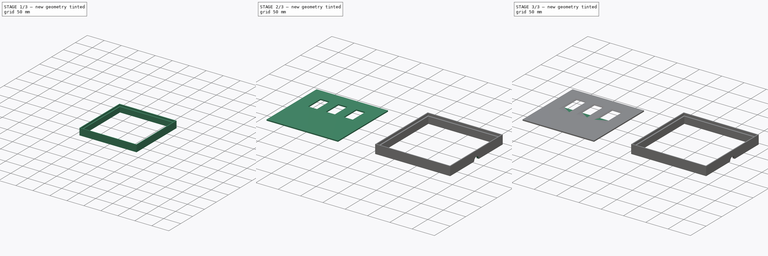
[diagram: build sequence overview — one tinted view per stage of 3, left to right]
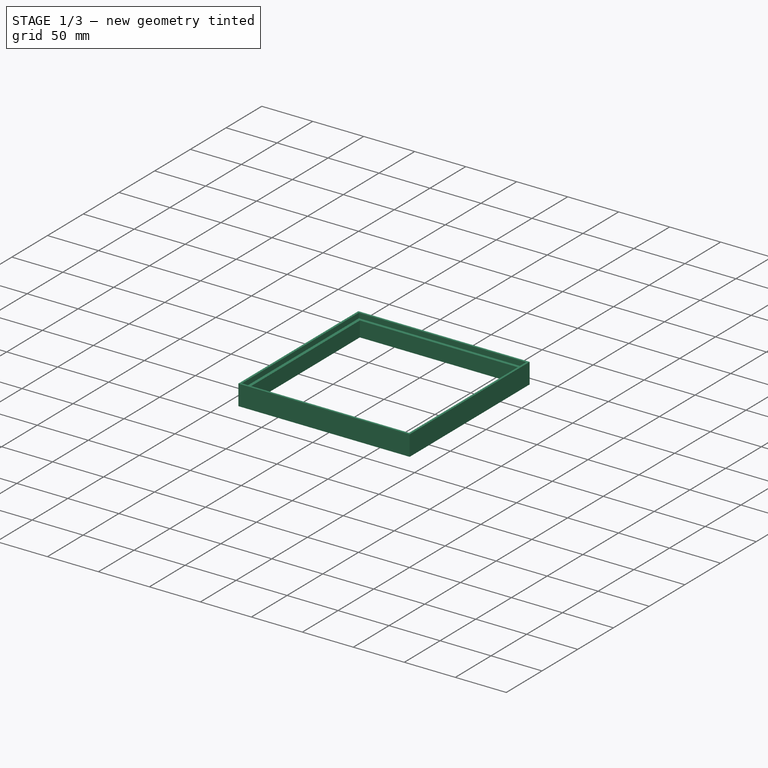
[diagram: stage 1 of 3 — iso view after this stage's code; geometry added in this stage tinted green]
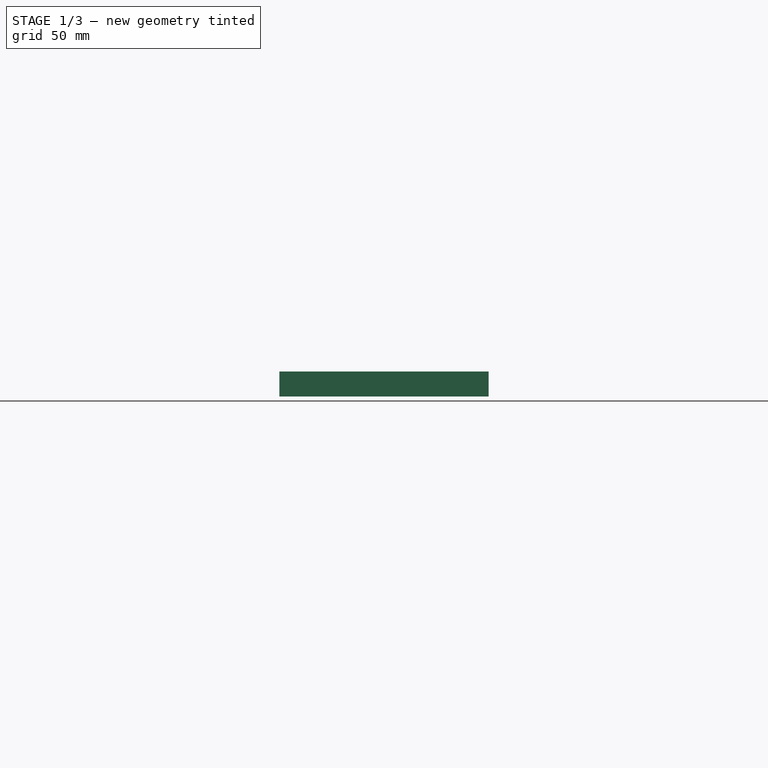
[diagram: stage 1 of 3 — front view after this stage's code; geometry added in this stage tinted green]
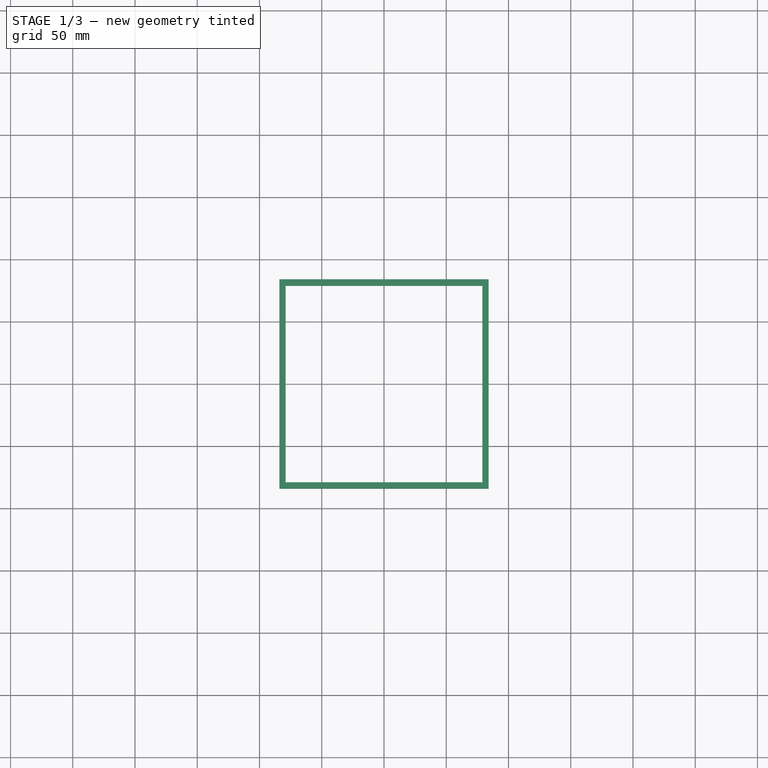
[diagram: stage 1 of 3 — top view after this stage's code; geometry added in this stage tinted green]
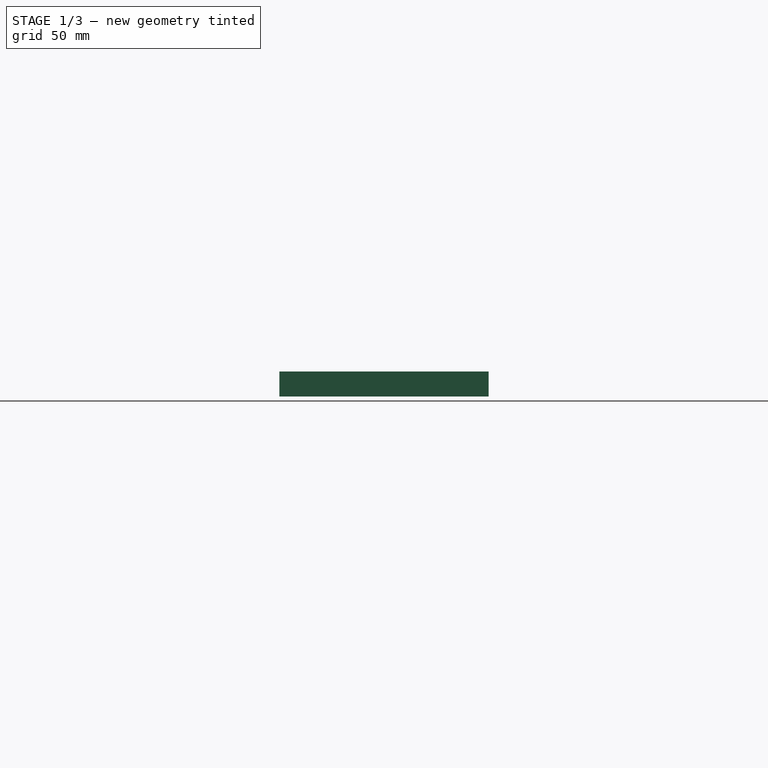
[diagram: stage 1 of 3 — right view after this stage's code; geometry added in this stage tinted green]
FCSTD DOCUMENT  (FreeCAD 1.0R39285 (Git))
Label: LEDMatrixBox
License: All rights reserved
LicenseURL: https://en.wikipedia.org/wiki/All_rights_reserved
objects: Sketcher::SketchObject×4, PartDesign::Pad×2, PartDesign::Chamfer×2, PartDesign::Body×2, PartDesign::Pocket×2
note: 28 computed .brp shape members not serialized (recipe doc carries the construction recipe); baked Part::Feature solids carry a one-line shape summary decoded from their .brp

FEATURE [PartDesign::Body] Body  label="BackPlate"
  AllowCompound = false
  Group = -> [Sketch,Pad,Chamfer,Chamfer001]
  Origin = -> Origin
  Tip = -> Chamfer001
FEATURE [Sketcher::SketchObject] Sketch001
  ArcFitTolerance = 1e-06
  AttachmentSupport = -> [XY_Plane001]
  FullyConstrained = true
  MakeInternals = false
  MapMode = 5
  sketch-geometry (10):
    g0: LineSegment StartX=166 StartY=84 StartZ=0 EndX=166 EndY=-84 EndZ=0
    g1: LineSegment StartX=166 StartY=-84 StartZ=0 EndX=334 EndY=-84 EndZ=0
    g2: LineSegment StartX=334 StartY=-84 StartZ=0 EndX=334 EndY=84 EndZ=0
    g3: LineSegment StartX=334 StartY=84 StartZ=0 EndX=166 EndY=84 EndZ=0
    g4: GeomPoint [constr] X=250 Y=0 Z=0
    g5: LineSegment StartX=171 StartY=79 StartZ=0 EndX=171 EndY=-79 EndZ=0
    g6: LineSegment StartX=171 StartY=-79 StartZ=0 EndX=329 EndY=-79 EndZ=0
    g7: LineSegment StartX=329 StartY=-79 StartZ=0 EndX=329 EndY=79 EndZ=0
    g8: LineSegment StartX=329 StartY=79 StartZ=0 EndX=171 EndY=79 EndZ=0
    g9: GeomPoint [constr] X=250 Y=0 Z=0
  constraints (25):
    c: Coincident(g0,g1)
    c: Coincident(g1,g2)
    c: Coincident(g2,g3)
    c: Coincident(g3,g0)
    c: Vertical(g0)
    c: Vertical(g2)
    c: Horizontal(g1)
    c: Horizontal(g3)
    c: Symmetric(g2,g0,g4)
    c: PointOnObject(g4,g-1)
    c: Coincident(g5,g6)
    c: Coincident(g6,g7)
    c: Coincident(g7,g8)
    c: Coincident(g8,g5)
    c: Vertical(g5)
    c: Vertical(g7)
    c: Horizontal(g6)
    c: Horizontal(g8)
    c: Symmetric(g7,g5,g9)
    c: Coincident(g9,g4)
    c: DistanceX(g8,g8) = 158
    c: DistanceY(g7,g7) = 158
    c: Distance(g3,g8) = 5
    c: Distance(g2,g7) = 5
    c: Distance(g9,g-2) = 250
FEATURE [PartDesign::Pad] Pad001
  Direction = (0,0,1)
  Length = 20
  Length2 = 10
  Profile = -> Sketch001
  ReferenceAxis = -> Sketch001 [N_Axis]
  Refine = true
  Suppressed = false
  Type = 0
FEATURE [Sketcher::SketchObject] Sketch002
  ArcFitTolerance = 1e-06
  AttachmentSupport = -> [Pad001]
  ExternalGeometry = -> [Pad001]
  FullyConstrained = true
  MakeInternals = false
  MapMode = 5
  Placement = pos=(0,0,20) rot=(0,0,1;0rad)
  sketch-geometry (4):
    g0: LineSegment StartX=168 StartY=82 StartZ=0 EndX=168 EndY=-82 EndZ=0
    g1: LineSegment StartX=168 StartY=-82 StartZ=0 EndX=332 EndY=-82 EndZ=0
    g2: LineSegment StartX=332 StartY=-82 StartZ=0 EndX=332 EndY=82 EndZ=0
    g3: LineSegment StartX=332 StartY=82 StartZ=0 EndX=168 EndY=82 EndZ=0
  constraints (12):
    c: Coincident(g0,g1)
    c: Coincident(g1,g2)
    c: Coincident(g2,g3)
    c: Coincident(g3,g0)
    c: Vertical(g0)
    c: Vertical(g2)
    c: Horizontal(g1)
    c: Horizontal(g3)
    c: Distance(g2,g-5) = 3
    c: Distance(g1,g-6) = 3
    c: Distance(g0,g-3) = 3
    c: Distance(g-4,g3) = 3
FEATURE [PartDesign::Pocket] Pocket
  BaseFeature = -> Pad001
  Direction = (0,0,-1)
  Length = 5
  Length2 = 5
  Profile = -> Sketch002
  ReferenceAxis = -> Sketch002 [N_Axis]
  Refine = true
  Suppressed = false
  Type = 0
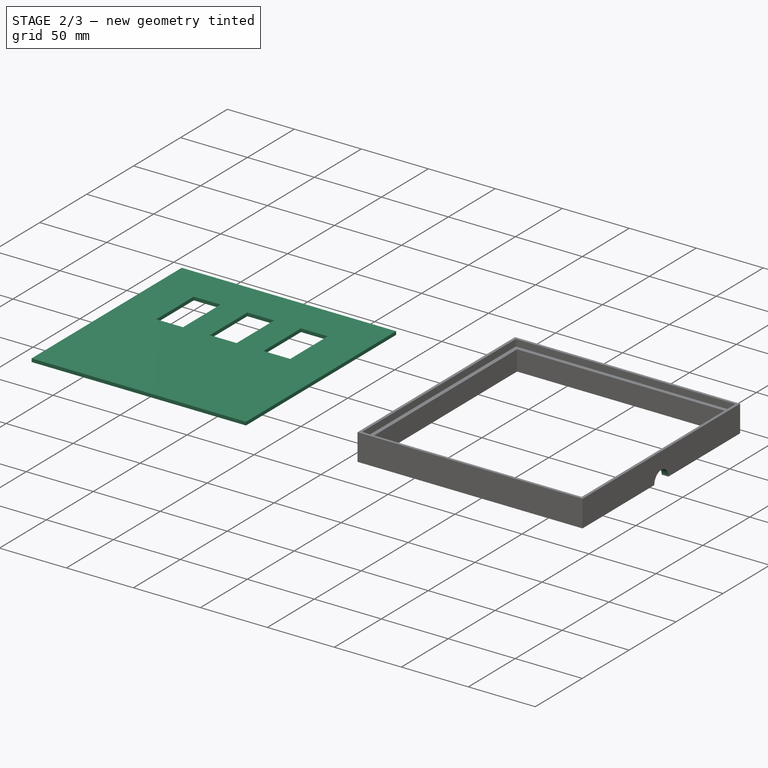
[diagram: stage 2 of 3 — iso view after this stage's code; geometry added in this stage tinted green]
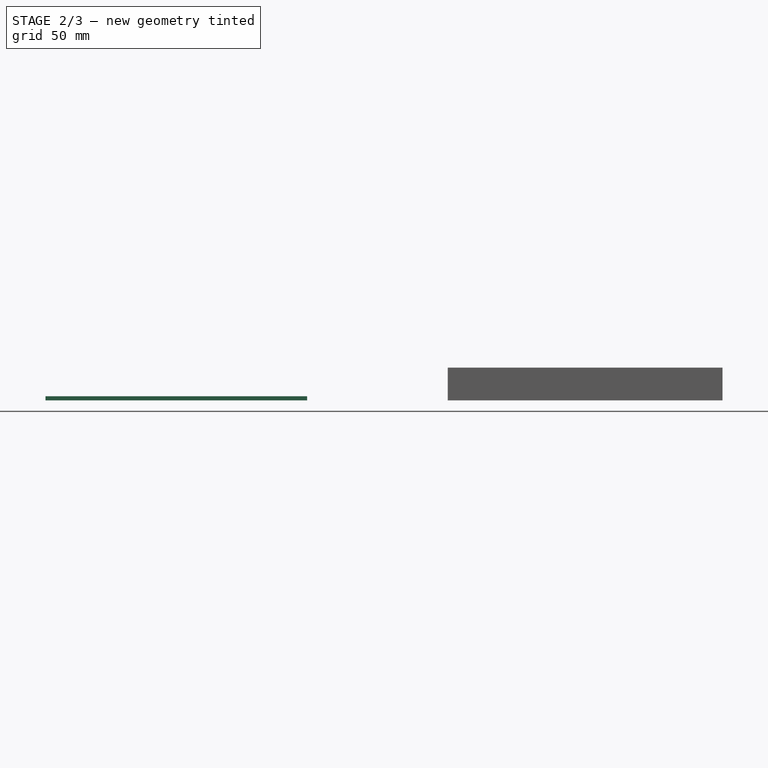
[diagram: stage 2 of 3 — front view after this stage's code; geometry added in this stage tinted green]
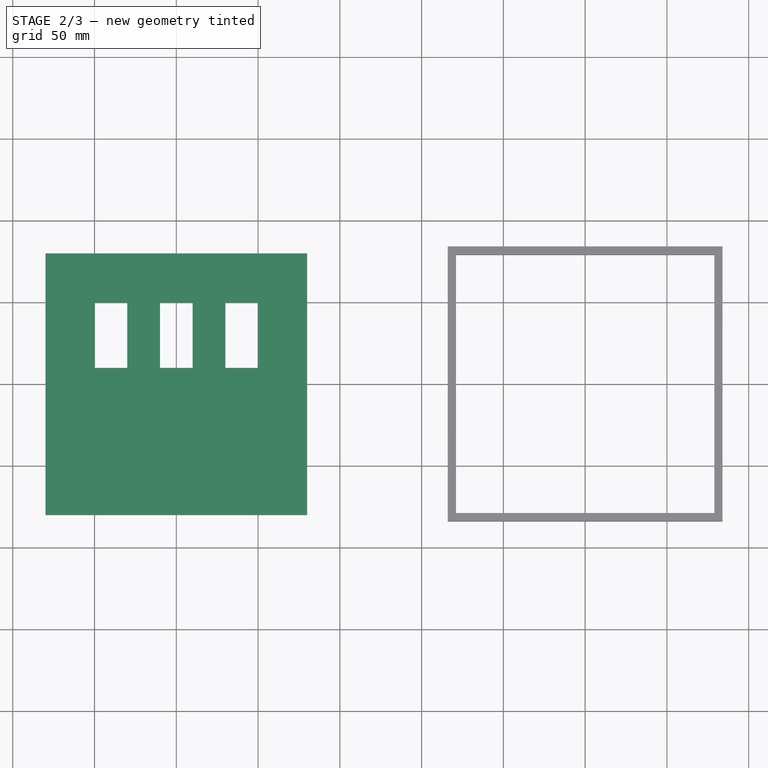
[diagram: stage 2 of 3 — top view after this stage's code; geometry added in this stage tinted green]
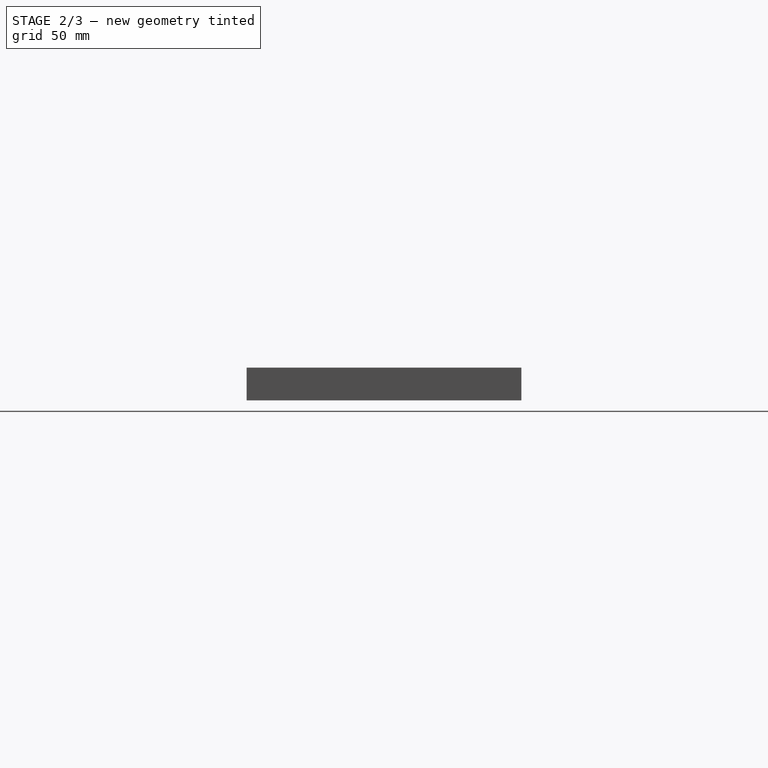
[diagram: stage 2 of 3 — right view after this stage's code; geometry added in this stage tinted green]
FEATURE [Sketcher::SketchObject] Sketch
  ArcFitTolerance = 1e-06
  AttachmentSupport = -> [XY_Plane]
  FullyConstrained = true
  MakeInternals = false
  MapMode = 5
  sketch-geometry (23):
    g0: LineSegment StartX=-80 StartY=80 StartZ=0 EndX=-80 EndY=-80 EndZ=0
    g1: LineSegment StartX=-80 StartY=-80 StartZ=0 EndX=80 EndY=-80 EndZ=0
    g2: LineSegment StartX=80 StartY=-80 StartZ=0 EndX=80 EndY=80 EndZ=0
    g3: LineSegment StartX=80 StartY=80 StartZ=0 EndX=-80 EndY=80 EndZ=0
    g4: GeomPoint [constr] X=0 Y=0 Z=0
    g5: LineSegment [constr] StartX=-80 StartY=50 StartZ=0 EndX=80 EndY=50 EndZ=0
    g6: LineSegment [constr] StartX=-40 StartY=80 StartZ=0 EndX=-40 EndY=-80 EndZ=0
    g7: LineSegment [constr] StartX=40 StartY=80 StartZ=0 EndX=40 EndY=-80 EndZ=0
    g8: LineSegment StartX=-50 StartY=50 StartZ=0 EndX=-50 EndY=10 EndZ=0
    g9: LineSegment StartX=-50 StartY=10 StartZ=0 EndX=-30 EndY=10 EndZ=0
    g10: LineSegment StartX=-30 StartY=10 StartZ=0 EndX=-30 EndY=50 EndZ=0
    g11: LineSegment StartX=-30 StartY=50 StartZ=0 EndX=-50 EndY=50 EndZ=0
    g12: GeomPoint [constr] X=-40 Y=30 Z=0
    g13: LineSegment StartX=-10 StartY=50 StartZ=0 EndX=-10 EndY=10 EndZ=0
    g14: LineSegment StartX=-10 StartY=10 StartZ=0 EndX=10 EndY=10 EndZ=0
    g15: LineSegment StartX=10 StartY=10 StartZ=0 EndX=10 EndY=50 EndZ=0
    g16: LineSegment StartX=10 StartY=50 StartZ=0 EndX=-10 EndY=50 EndZ=0
    g17: GeomPoint [constr] X=0 Y=30 Z=0
    g18: LineSegment StartX=30 StartY=50 StartZ=0 EndX=30 EndY=10 EndZ=0
    g19: LineSegment StartX=30 StartY=10 StartZ=0 EndX=50 EndY=10 EndZ=0
    g20: LineSegment StartX=50 StartY=10 StartZ=0 EndX=50 EndY=50 EndZ=0
    g21: LineSegment StartX=50 StartY=50 StartZ=0 EndX=30 EndY=50 EndZ=0
    g22: GeomPoint [constr] X=40 Y=30 Z=0
  constraints (63):
    c: Coincident(g0,g1)
    c: Coincident(g1,g2)
    c: Coincident(g2,g3)
    c: Coincident(g3,g0)
    c: Vertical(g0)
    c: Vertical(g2)
    c: Horizontal(g1)
    c: Horizontal(g3)
    c: Symmetric(g2,g0,g4)
    c: Coincident(g4,g-1)
    c: DistanceX(g3,g3) = 160
    c: DistanceY(g0,g0) = 160
    c: Horizontal(g5)
    c: Vertical(g6)
    c: Vertical(g7)
    c: PointOnObject(g5,g0)
    c: PointOnObject(g6,g3)
    c: PointOnObject(g6,g1)
    c: PointOnObject(g7,g3)
    c: PointOnObject(g5,g2)
    c: PointOnObject(g7,g1)
    c: Distance(g6,g0) = 40
    c: Distance(g7,g2) = 40
    c: Distance(g5,g3) = 30
    c: Coincident(g8,g9)
    c: Coincident(g9,g10)
    c: Coincident(g10,g11)
    c: Coincident(g11,g8)
    c: Vertical(g8)
    c: Vertical(g10)
    c: Horizontal(g9)
    c: Horizontal(g11)
    c: Symmetric(g10,g8,g12)
    c: PointOnObject(g12,g6)
    c: Coincident(g13,g14)
    c: Coincident(g14,g15)
    c: Coincident(g15,g16)
    c: Coincident(g16,g13)
    c: Vertical(g13)
    c: Vertical(g15)
    c: Horizontal(g14)
    c: Horizontal(g16)
    c: Symmetric(g15,g13,g17)
    c: PointOnObject(g17,g-2)
    c: Coincident(g18,g19)
    c: Coincident(g19,g20)
    c: Coincident(g20,g21)
    c: Coincident(g21,g18)
    c: Vertical(g18)
    c: Vertical(g20)
    c: Horizontal(g19)
    c: Horizontal(g21)
    c: Symmetric(g20,g18,g22)
    c: PointOnObject(g22,g7)
    c: PointOnObject(g8,g5)
    c: PointOnObject(g13,g5)
    c: PointOnObject(g18,g5)
    c: Distance(g11,g11) = 20
    c: Distance(g16,g16) = 20
    c: Distance(g21,g21) = 20
    c: DistanceY(g8,g8) = 40
    c: DistanceY(g13,g13) = 40
    c: DistanceY(g18,g18) = 40
FEATURE [PartDesign::Pad] Pad
  Direction = (0,0,1)
  Length = 2.5
  Length2 = 10
  Profile = -> Sketch
  ReferenceAxis = -> Sketch [N_Axis]
  Refine = true
  Suppressed = false
  Type = 0
FEATURE [Sketcher::SketchObject] Sketch003
  ArcFitTolerance = 1e-06
  AttachmentSupport = -> [Pocket]
  FullyConstrained = true
  MakeInternals = false
  MapMode = 5
  Placement = pos=(334,0,0) rot=(0.57735,0.57735,0.57735;2.0944rad)
  sketch-geometry (1):
    g0: Circle CenterX=0 CenterY=0 CenterZ=0 NormalX=0 NormalY=0 NormalZ=1 AngleXU=0 Radius=7.5
  constraints (2):
    c: Coincident(g0,g-1)
    c: Diameter(g0) = 15
FEATURE [PartDesign::Pocket] Pocket001
  BaseFeature = -> Pocket
  Direction = (-1,0,0)
  Length = 15
  Length2 = 5
  Profile = -> Sketch003
  ReferenceAxis = -> Sketch003 [N_Axis]
  Refine = true
  Suppressed = false
  Type = 0
FEATURE [PartDesign::Body] Body001  label="Frame"
  AllowCompound = false
  Group = -> [Sketch001,Pad001,Sketch002,Pocket,Sketch003,Pocket001]
  Origin = -> Origin001
  Tip = -> Pocket001
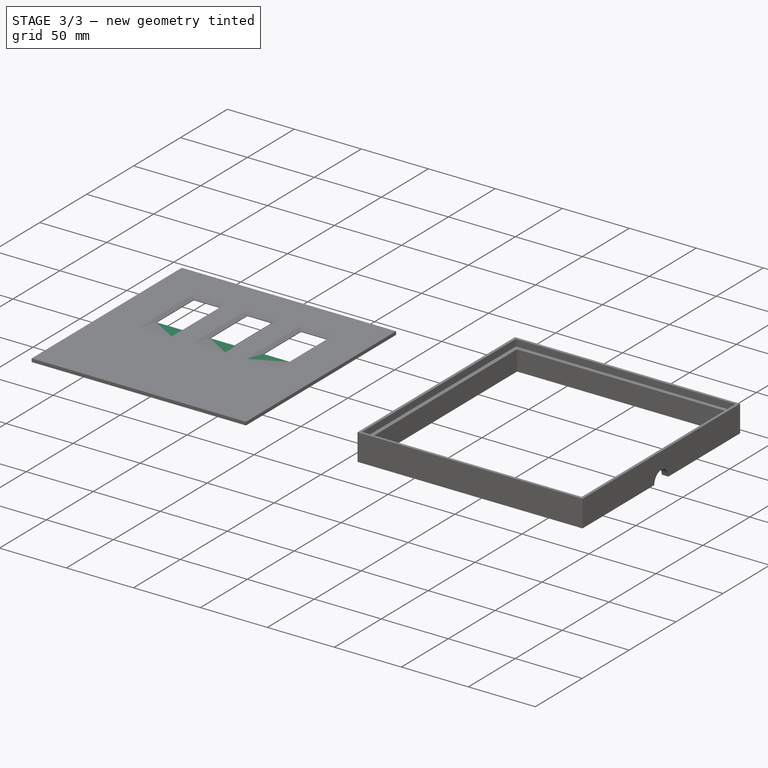
[diagram: stage 3 of 3 — iso view after this stage's code; geometry added in this stage tinted green]
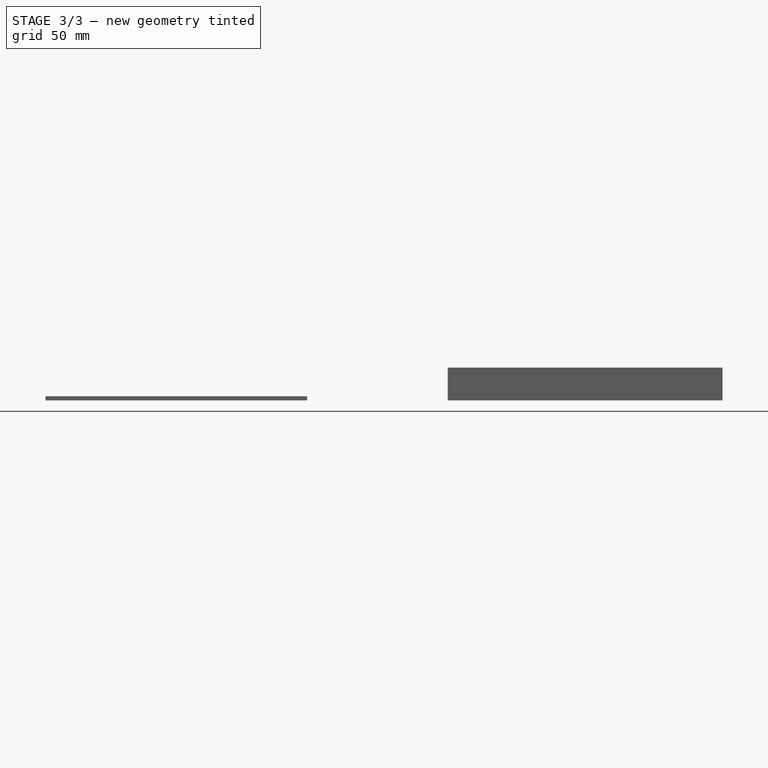
[diagram: stage 3 of 3 — front view after this stage's code; geometry added in this stage tinted green]
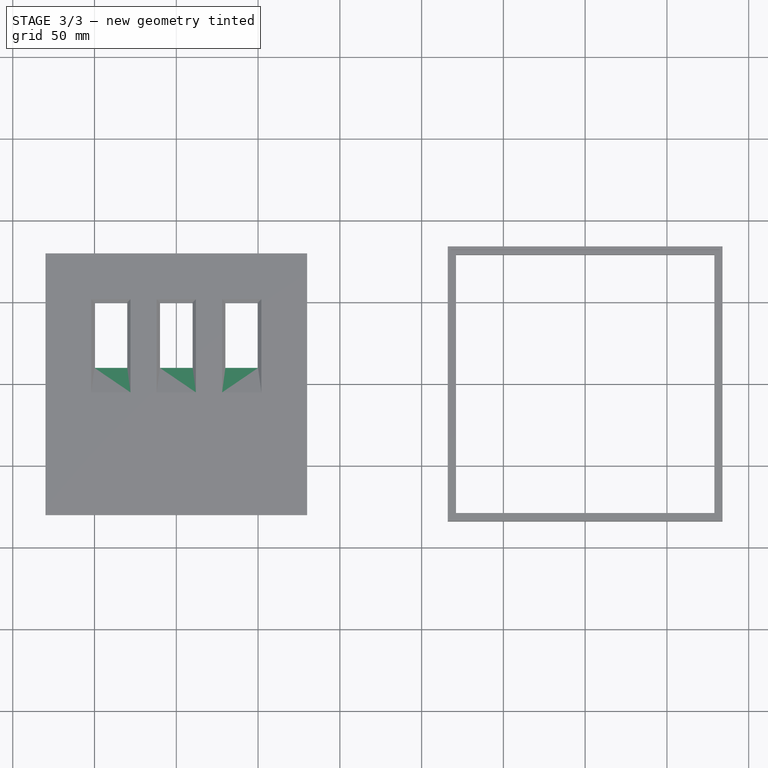
[diagram: stage 3 of 3 — top view after this stage's code; geometry added in this stage tinted green]
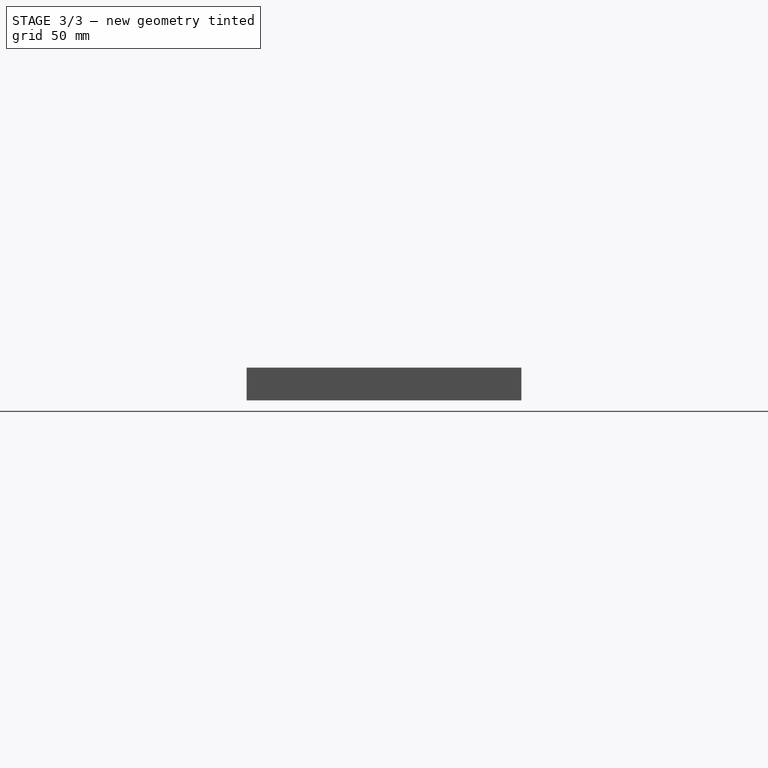
[diagram: stage 3 of 3 — right view after this stage's code; geometry added in this stage tinted green]
FEATURE [PartDesign::Chamfer] Chamfer
  Angle = 45
  Base = -> Pad [Edge31,Edge43,Edge19]
  BaseFeature = -> Pad
  ChamferType = 1
  FlipDirection = false
  Refine = true
  Size = 2
  Size2 = 15
  SupportTransform = false
  Suppressed = false
  UseAllEdges = false
FEATURE [PartDesign::Chamfer] Chamfer001
  Angle = 45
  Base = -> Chamfer [Edge4,Edge6,Edge42,Edge44,Edge43,Edge36,Edge37,Edge39,Edge41,Edge40,Edge26,Edge27,Edge29,Edge31,Edge30]
  BaseFeature = -> Chamfer
  ChamferType = 0
  FlipDirection = false
  Refine = true
  Size = 2
  Size2 = 1
  SupportTransform = false
  Suppressed = false
  UseAllEdges = false
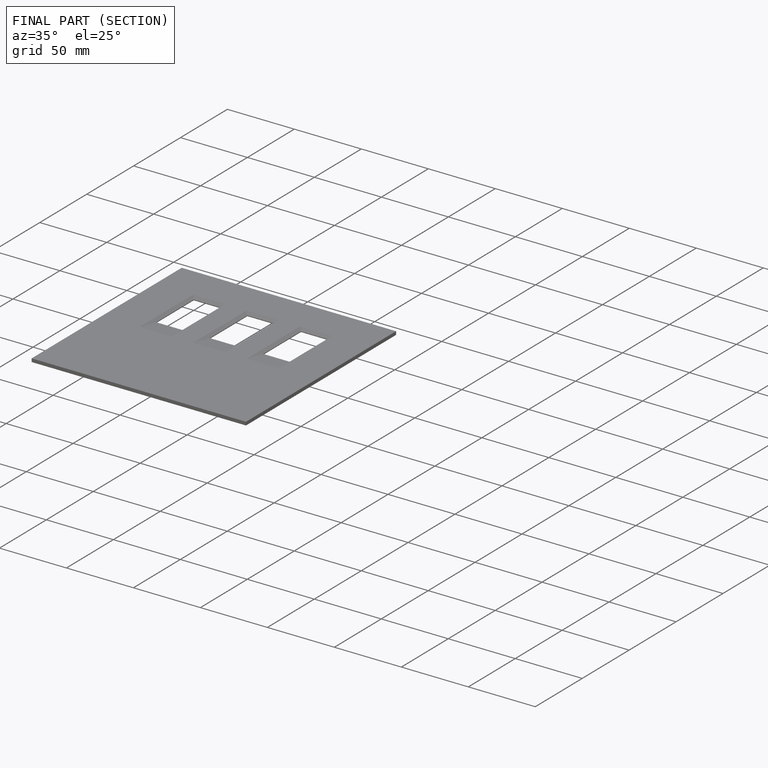
[diagram: finished part — half-section view (interior)]
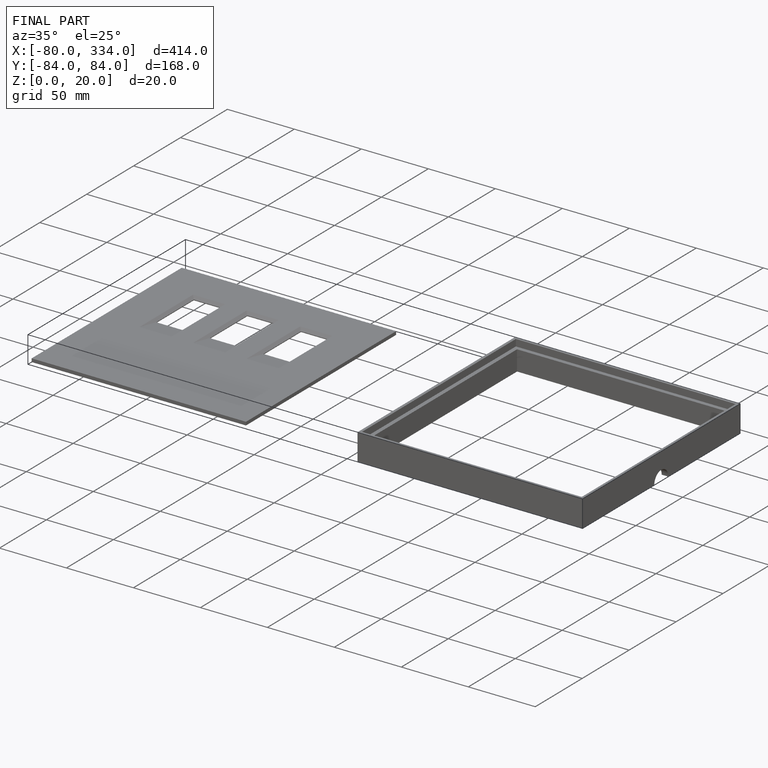
[diagram: finished part — iso view with bounding-box wireframe]
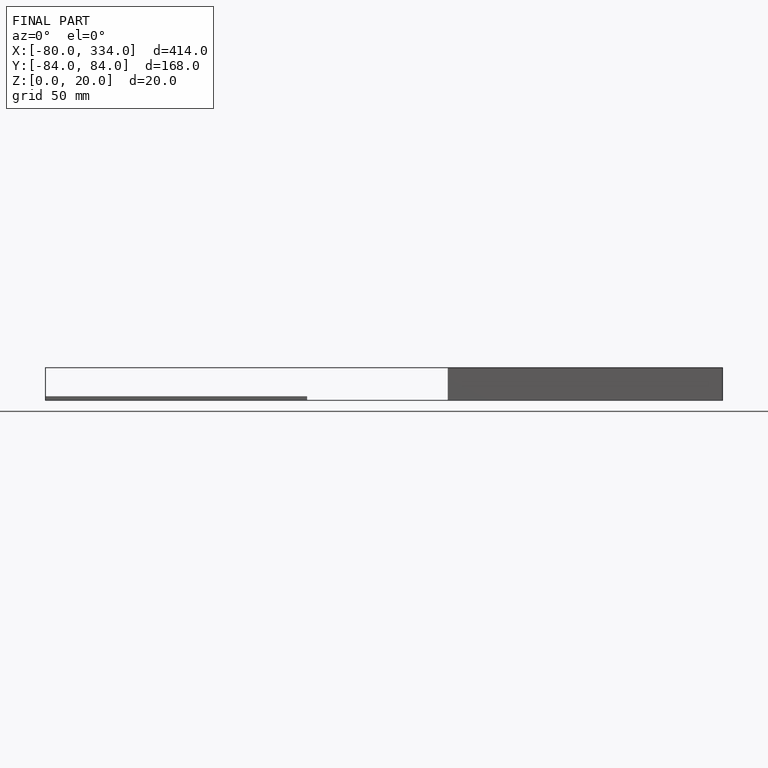
[diagram: finished part — front view with bounding-box wireframe]
